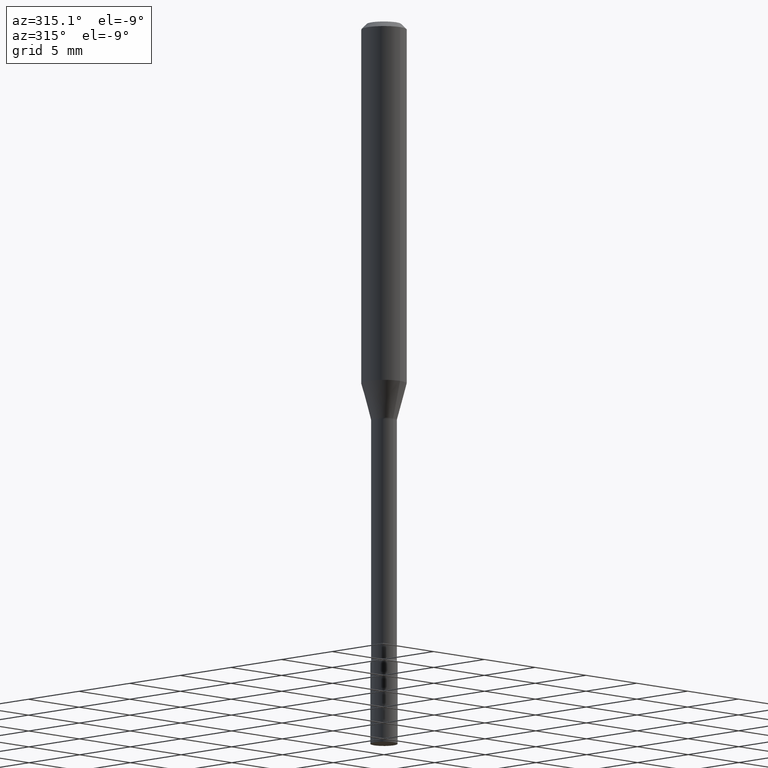
[diagram: clean part render]
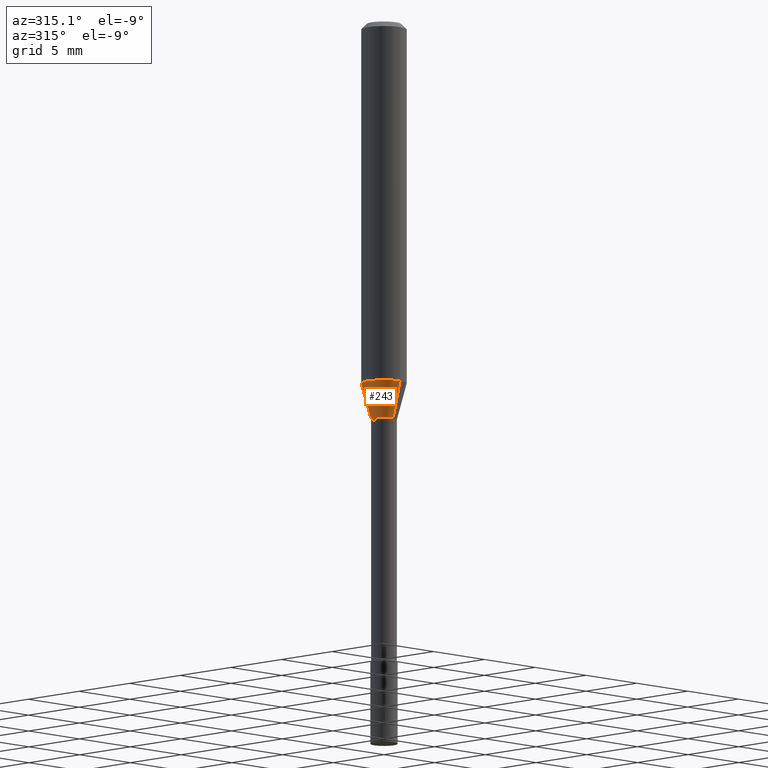
[diagram: same view with one face highlighted and labeled with its STEP entity id]
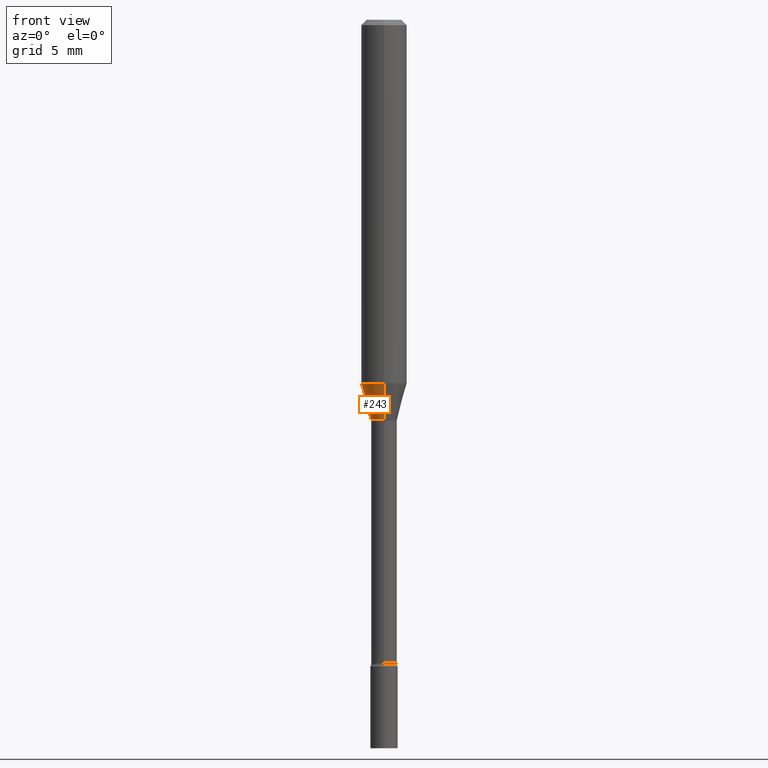
[diagram: same view with one face highlighted and labeled with its STEP entity id]
A machine part, auxiliary view. The second image highlights one B-rep face of the part: STEP entity #243.
A second angle (front view) of the same face is appended — the face is thin or edge-on in the first view.
In plain terms, the highlighted conical surface has half-angle 15 deg.
Its self-contained STEP definition (entity closure, byte-faithful):
#7 = EDGE_LOOP ( 'NONE', ( #282, #348, #294, #408 ) ) ;
#11 = LINE ( 'NONE', #97, #497 ) ;
#12 = CIRCLE ( 'NONE', #83, 0.06250000000000000000 ) ;
#42 = VERTEX_POINT ( 'NONE', #162 ) ;
#44 = CIRCLE ( 'NONE', #437, 0.03576111260566397498 ) ;
#56 = DIRECTION ( 'NONE',  ( -6.982962677686265133E-15, -1.000000000000000000, 3.819579138641765120E-15 ) ) ;
#72 = CARTESIAN_POINT ( 'NONE',  ( 2.540979878465616281E-16, 0.03576111260566013778, -1.098092501787273356 ) ) ;
#83 = AXIS2_PLACEMENT_3D ( 'NONE', #228, #193, #432 ) ;
#94 = DIRECTION ( 'NONE',  ( -2.445461058978122069E-29, 3.491492433284533823E-15, 1.000000000000000000 ) ) ;
#97 = CARTESIAN_POINT ( 'NONE',  ( -2.497185146378605472E-16, -0.03576111260566780525, -1.098092501787272912 ) ) ;
#114 = LINE ( 'NONE', #72, #330 ) ;
#144 = EDGE_CURVE ( 'NONE', #255, #363, #12, .T. ) ;
#157 = CARTESIAN_POINT ( 'NONE',  ( 2.685342452276640404E-29, -3.833981661036747555E-15, -1.098092501787273134 ) ) ;
#162 = CARTESIAN_POINT ( 'NONE',  ( -2.497185146378605472E-16, -0.03576111260566780525, -1.098092501787272912 ) ) ;
#174 = FACE_OUTER_BOUND ( 'NONE', #7, .T. ) ;
#181 = DIRECTION ( 'NONE',  ( -1.807323732225328167E-15, -0.2588190451025179084, 0.9659258262890690894 ) ) ;
#193 = DIRECTION ( 'NONE',  ( -2.445461058978122069E-29, 3.491492433284533823E-15, 1.000000000000000000 ) ) ;
#197 = VERTEX_POINT ( 'NONE', #470 ) ;
#223 = AXIS2_PLACEMENT_3D ( 'NONE', #157, #431, #511 ) ;
#228 = CARTESIAN_POINT ( 'NONE',  ( 2.441307725804911996E-29, -3.485562536632148597E-15, -0.9983016154937482955 ) ) ;
#233 = EDGE_CURVE ( 'NONE', #42, #363, #11, .T. ) ;
#243 = ADVANCED_FACE ( 'NONE', ( #174 ), #454, .T. ) ;
#255 = VERTEX_POINT ( 'NONE', #465 ) ;
#282 = ORIENTED_EDGE ( 'NONE', *, *, #303, .F. ) ;
#294 = ORIENTED_EDGE ( 'NONE', *, *, #233, .T. ) ;
#303 = EDGE_CURVE ( 'NONE', #197, #255, #114, .T. ) ;
#315 = CARTESIAN_POINT ( 'NONE',  ( -4.364351673553671654E-16, -0.06250000000000346945, -0.9983016154937480735 ) ) ;
#330 = VECTOR ( 'NONE', #387, 39.37007874015748854 ) ;
#348 = ORIENTED_EDGE ( 'NONE', *, *, #514, .T. ) ;
#363 = VERTEX_POINT ( 'NONE', #315 ) ;
#387 = DIRECTION ( 'NONE',  ( 1.839019923739597949E-15, 0.2588190451025246253, 0.9659258262890670910 ) ) ;
#408 = ORIENTED_EDGE ( 'NONE', *, *, #144, .F. ) ;
#431 = DIRECTION ( 'NONE',  ( -2.445461058978122069E-29, 3.491492433284533823E-15, 1.000000000000000000 ) ) ;
#432 = DIRECTION ( 'NONE',  ( -6.982962677686265922E-15, -1.000000000000000000, 4.370956789862821150E-15 ) ) ;
#437 = AXIS2_PLACEMENT_3D ( 'NONE', #499, #94, #56 ) ;
#454 = CONICAL_SURFACE ( 'NONE', #223, 0.03576111260566397498, 0.2617993877991499629 ) ;
#465 = CARTESIAN_POINT ( 'NONE',  ( 4.440892098500869722E-16, 0.06249999999999652361, -0.9983016154937485176 ) ) ;
#470 = CARTESIAN_POINT ( 'NONE',  ( 3.490935988483243741E-16, 0.03576111260566013778, -1.098092501787273356 ) ) ;
#497 = VECTOR ( 'NONE', #181, 39.37007874015748143 ) ;
#499 = CARTESIAN_POINT ( 'NONE',  ( 2.685342452276640404E-29, -3.833981661036747555E-15, -1.098092501787273134 ) ) ;
#511 = DIRECTION ( 'NONE',  ( -6.982962677686265133E-15, -1.000000000000000000, 3.819579138641765120E-15 ) ) ;
#514 = EDGE_CURVE ( 'NONE', #197, #42, #44, .T. ) ;